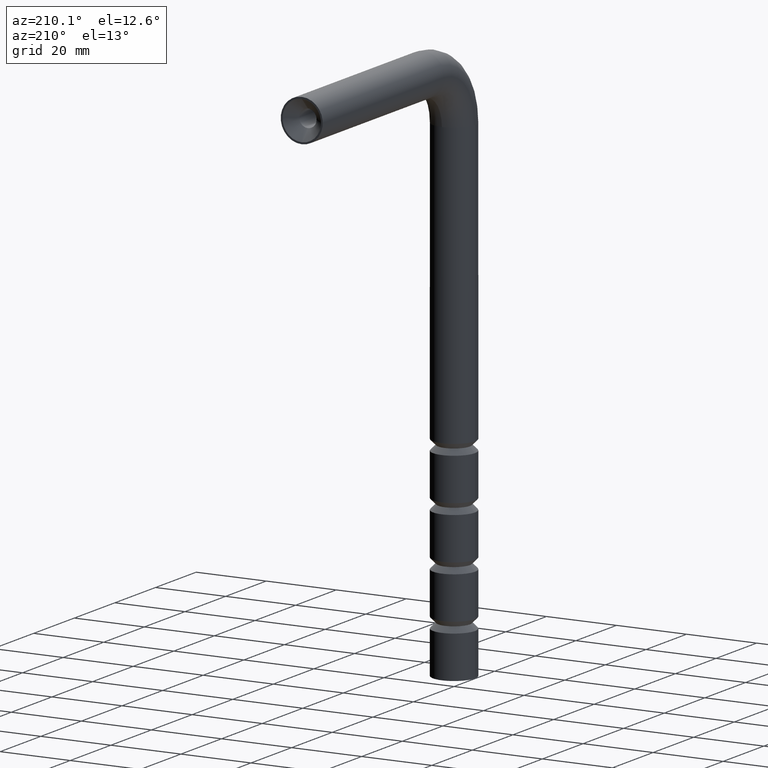
[diagram: clean part render]
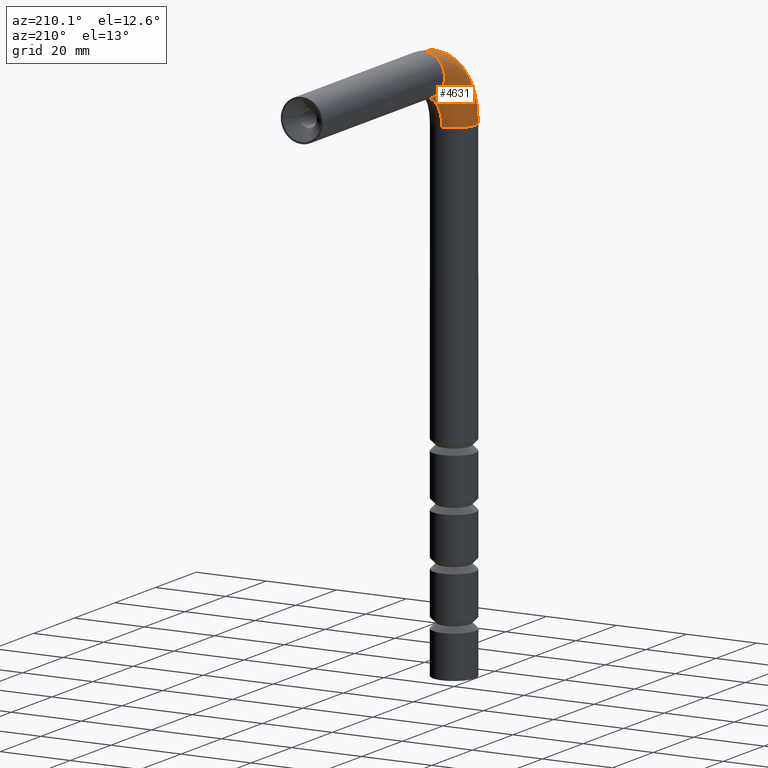
[diagram: same view with one face highlighted and labeled with its STEP entity id]
A machine part, auxiliary view. The second image highlights one B-rep face of the part: STEP entity #4631.
In plain terms, the highlighted toroidal blend (fillet) surface has major radius 15 mm and minor (blend) radius 6 mm.
Its self-contained STEP definition (entity closure, byte-faithful):
#87 = CIRCLE ( 'NONE', #512, 9.000000000000007105 ) ;
#313 = DIRECTION ( 'NONE',  ( 0.000000000000000000, 1.000000000000000000, -4.625929269271485914E-16 ) ) ;
#512 = AXIS2_PLACEMENT_3D ( 'NONE', #3041, #932, #9065 ) ;
#932 = DIRECTION ( 'NONE',  ( 1.000000000000000000, 0.000000000000000000, -0.000000000000000000 ) ) ;
#1072 = CARTESIAN_POINT ( 'NONE',  ( 0.000000000000000000, 15.00000000000000000, 140.0000000000000000 ) ) ;
#2163 = ORIENTED_EDGE ( 'NONE', *, *, #8554, .T. ) ;
#2462 = DIRECTION ( 'NONE',  ( 1.000000000000000000, 0.000000000000000000, 0.000000000000000000 ) ) ;
#2565 = AXIS2_PLACEMENT_3D ( 'NONE', #5240, #8124, #12245 ) ;
#2759 = VERTEX_POINT ( 'NONE', #9906 ) ;
#2848 = ORIENTED_EDGE ( 'NONE', *, *, #7287, .F. ) ;
#2929 = DIRECTION ( 'NONE',  ( 0.000000000000000000, 0.000000000000000000, -1.000000000000000000 ) ) ;
#3041 = CARTESIAN_POINT ( 'NONE',  ( -7.347880794884120722E-16, 15.00000000000000000, 140.0000000000000000 ) ) ;
#3343 = ORIENTED_EDGE ( 'NONE', *, *, #6548, .T. ) ;
#3414 = FACE_OUTER_BOUND ( 'NONE', #6533, .T. ) ;
#3694 = CIRCLE ( 'NONE', #4410, 6.000000000000000888 ) ;
#3893 = VERTEX_POINT ( 'NONE', #9923 ) ;
#4330 = AXIS2_PLACEMENT_3D ( 'NONE', #6072, #6032, #9175 ) ;
#4410 = AXIS2_PLACEMENT_3D ( 'NONE', #6470, #313, #2462 ) ;
#4448 = ORIENTED_EDGE ( 'NONE', *, *, #9797, .F. ) ;
#4631 = ADVANCED_FACE ( 'NONE', ( #3414 ), #9787, .T. ) ;
#5041 = EDGE_CURVE ( 'NONE', #3893, #7503, #11523, .T. ) ;
#5240 = CARTESIAN_POINT ( 'NONE',  ( 0.000000000000000000, -6.938893903907228378E-15, 140.0000000000000000 ) ) ;
#6032 = DIRECTION ( 'NONE',  ( 0.000000000000000000, 0.000000000000000000, 1.000000000000000000 ) ) ;
#6072 = CARTESIAN_POINT ( 'NONE',  ( 0.000000000000000000, -6.938893903907228378E-15, 140.0000000000000000 ) ) ;
#6470 = CARTESIAN_POINT ( 'NONE',  ( 0.000000000000000000, 15.00000000000000000, 155.0000000000000284 ) ) ;
#6533 = EDGE_LOOP ( 'NONE', ( #4448, #2848, #3343, #2163, #12289 ) ) ;
#6548 = EDGE_CURVE ( 'NONE', #2759, #11007, #87, .T. ) ;
#6694 = CIRCLE ( 'NONE', #12813, 21.00000000000001776 ) ;
#7287 = EDGE_CURVE ( 'NONE', #2759, #7691, #3694, .T. ) ;
#7478 = CARTESIAN_POINT ( 'NONE',  ( -7.347880794884123680E-16, 5.999999999999993783, 140.0000000000000000 ) ) ;
#7503 = VERTEX_POINT ( 'NONE', #12662 ) ;
#7691 = VERTEX_POINT ( 'NONE', #12918 ) ;
#8124 = DIRECTION ( 'NONE',  ( 0.000000000000000000, 0.000000000000000000, 1.000000000000000000 ) ) ;
#8289 = CIRCLE ( 'NONE', #4330, 6.000000000000000888 ) ;
#8554 = EDGE_CURVE ( 'NONE', #11007, #3893, #8289, .T. ) ;
#8744 = AXIS2_PLACEMENT_3D ( 'NONE', #11854, #8985, #2929 ) ;
#8985 = DIRECTION ( 'NONE',  ( 1.000000000000000000, 0.000000000000000000, -0.000000000000000000 ) ) ;
#9065 = DIRECTION ( 'NONE',  ( 0.000000000000000000, 0.000000000000000000, -1.000000000000000000 ) ) ;
#9175 = DIRECTION ( 'NONE',  ( 1.000000000000000000, 0.000000000000000000, 0.000000000000000000 ) ) ;
#9787 = TOROIDAL_SURFACE ( 'NONE', #8744, 15.00000000000001421, 6.000000000000000888 ) ;
#9797 = EDGE_CURVE ( 'NONE', #7691, #7503, #6694, .T. ) ;
#9906 = CARTESIAN_POINT ( 'NONE',  ( 0.000000000000000000, 14.99999999999999645, 149.0000000000000284 ) ) ;
#9923 = CARTESIAN_POINT ( 'NONE',  ( -6.000000000000000888, 0.000000000000000000, 140.0000000000000000 ) ) ;
#10081 = DIRECTION ( 'NONE',  ( 0.000000000000000000, 0.000000000000000000, -1.000000000000000000 ) ) ;
#10126 = DIRECTION ( 'NONE',  ( 1.000000000000000000, 0.000000000000000000, -0.000000000000000000 ) ) ;
#11007 = VERTEX_POINT ( 'NONE', #7478 ) ;
#11523 = CIRCLE ( 'NONE', #2565, 6.000000000000000888 ) ;
#11854 = CARTESIAN_POINT ( 'NONE',  ( 0.000000000000000000, 15.00000000000000000, 140.0000000000000000 ) ) ;
#12245 = DIRECTION ( 'NONE',  ( 1.000000000000000000, 0.000000000000000000, 0.000000000000000000 ) ) ;
#12289 = ORIENTED_EDGE ( 'NONE', *, *, #5041, .T. ) ;
#12662 = CARTESIAN_POINT ( 'NONE',  ( 0.000000000000000000, -6.000000000000012434, 140.0000000000000000 ) ) ;
#12813 = AXIS2_PLACEMENT_3D ( 'NONE', #1072, #10126, #10081 ) ;
#12918 = CARTESIAN_POINT ( 'NONE',  ( 7.347880794884114806E-16, 15.00000000000000355, 161.0000000000000284 ) ) ;